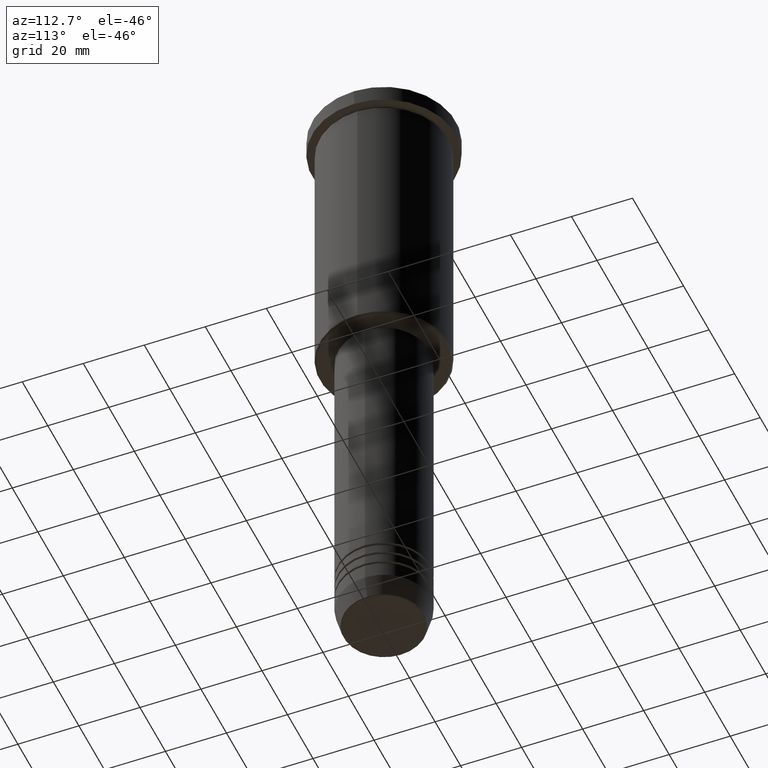
[diagram: clean part render]
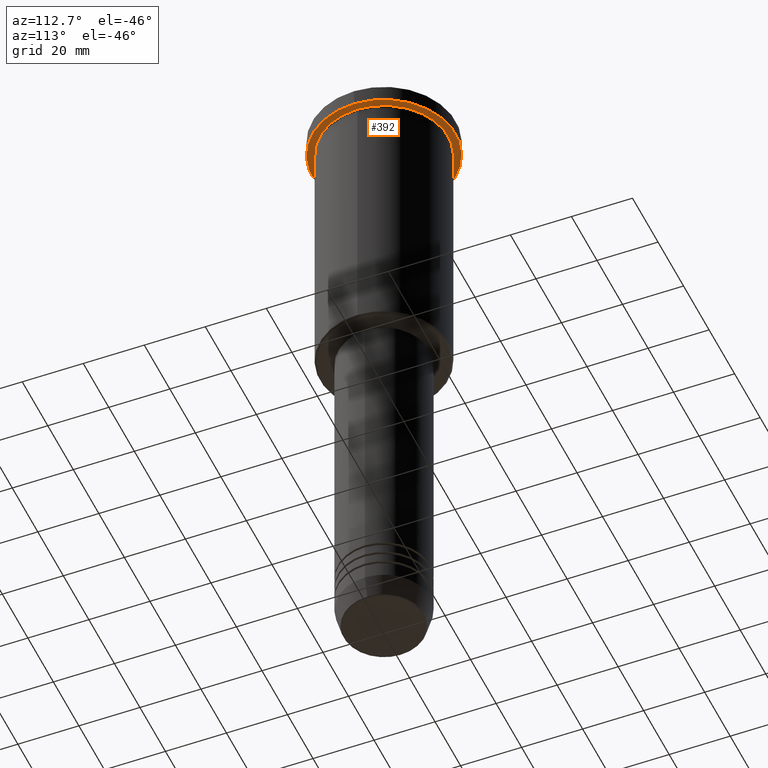
[diagram: same view with one face highlighted and labeled with its STEP entity id]
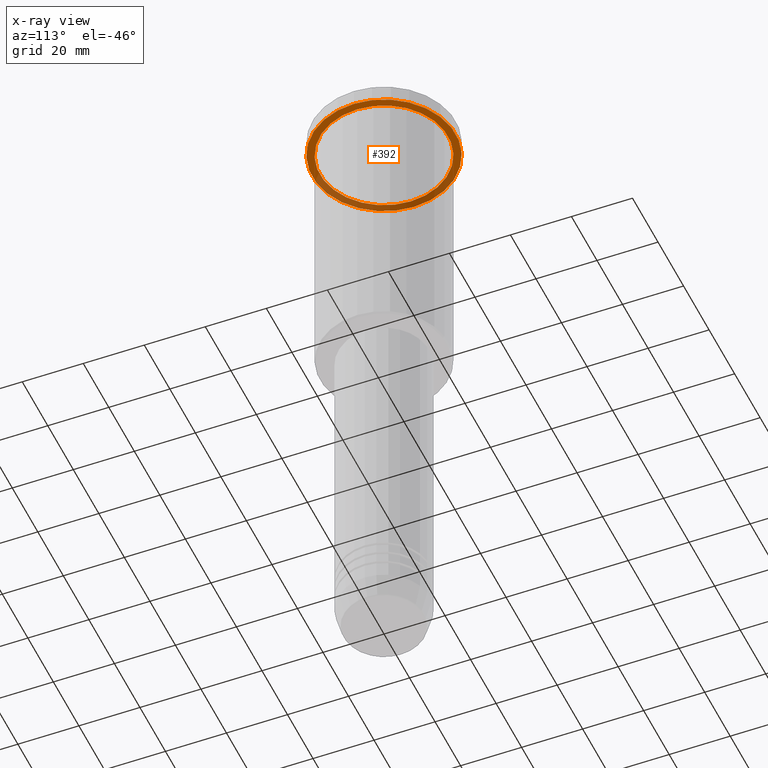
[diagram: x-ray of the same camera — body ghosted, the highlighted face saturated]
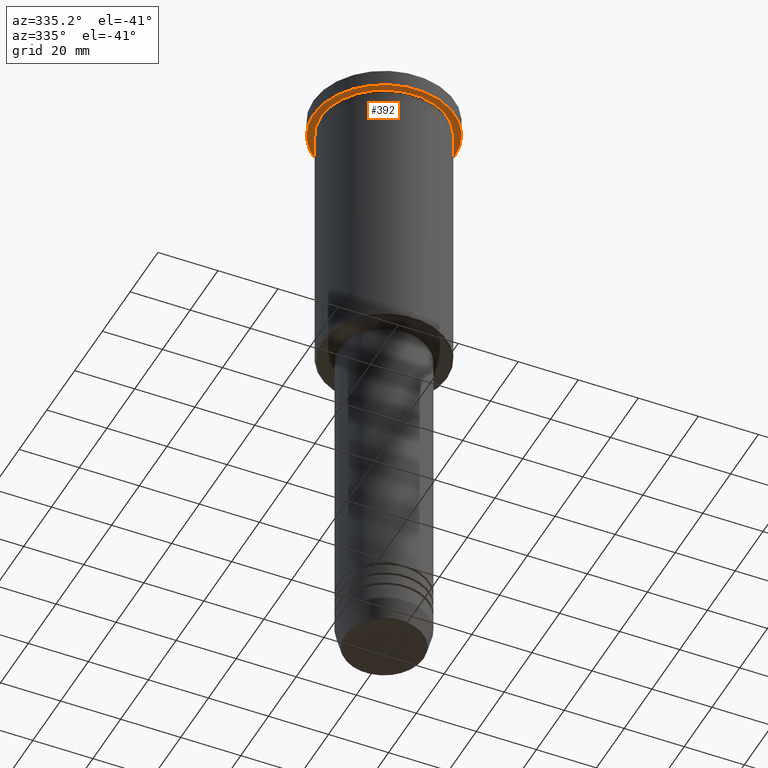
[diagram: same view with one face highlighted and labeled with its STEP entity id]
A machine part, auxiliary view. The second image highlights one B-rep face of the part: STEP entity #392.
The next image is the same camera in x-ray: the body ghosted, the highlighted face saturated — about 37% of this face is hidden behind the body in this view.
A second angle (auxiliary view) of the same face is appended — the face is thin or edge-on in the first view.
In plain terms, the highlighted planar face has unit normal (0, 0, -1).
Its self-contained STEP definition (entity closure, byte-faithful):
#20 = ORIENTED_EDGE ( 'NONE', *, *, #113, .T. ) ;
#87 = PLANE ( 'NONE',  #889 ) ;
#98 = CARTESIAN_POINT ( 'NONE',  ( 0.000000000000000000, 0.000000000000000000, -5.999999999999993783 ) ) ;
#100 = CARTESIAN_POINT ( 'NONE',  ( 21.00000000000000000, 2.571758278209441661E-15, -5.999999999999992895 ) ) ;
#113 = EDGE_CURVE ( 'NONE', #661, #901, #531, .T. ) ;
#124 = DIRECTION ( 'NONE',  ( 1.000000000000000000, 0.000000000000000000, 0.000000000000000000 ) ) ;
#155 = CARTESIAN_POINT ( 'NONE',  ( 0.000000000000000000, 0.000000000000000000, -5.999999999999993783 ) ) ;
#158 = EDGE_CURVE ( 'NONE', #732, #257, #186, .T. ) ;
#161 = FACE_OUTER_BOUND ( 'NONE', #1093, .T. ) ;
#186 = CIRCLE ( 'NONE', #551, 23.50000000000000000 ) ;
#195 = ORIENTED_EDGE ( 'NONE', *, *, #583, .F. ) ;
#207 = CIRCLE ( 'NONE', #963, 23.50000000000000000 ) ;
#216 = DIRECTION ( 'NONE',  ( -1.000000000000000000, 0.000000000000000000, 0.000000000000000000 ) ) ;
#257 = VERTEX_POINT ( 'NONE', #686 ) ;
#279 = EDGE_CURVE ( 'NONE', #901, #661, #702, .T. ) ;
#320 = AXIS2_PLACEMENT_3D ( 'NONE', #1113, #478, #216 ) ;
#363 = ORIENTED_EDGE ( 'NONE', *, *, #279, .T. ) ;
#381 = DIRECTION ( 'NONE',  ( 1.000000000000000000, 0.000000000000000000, 0.000000000000000000 ) ) ;
#392 = ADVANCED_FACE ( 'NONE', ( #622, #161 ), #87, .T. ) ;
#418 = EDGE_LOOP ( 'NONE', ( #20, #363 ) ) ;
#430 = DIRECTION ( 'NONE',  ( 0.000000000000000000, 0.000000000000000000, -1.000000000000000000 ) ) ;
#449 = CARTESIAN_POINT ( 'NONE',  ( 0.000000000000000000, 23.50000000000000000, -5.999999999999993783 ) ) ;
#459 = DIRECTION ( 'NONE',  ( -1.000000000000000000, 0.000000000000000000, -0.000000000000000000 ) ) ;
#478 = DIRECTION ( 'NONE',  ( -0.000000000000000000, -0.000000000000000000, 1.000000000000000000 ) ) ;
#505 = ORIENTED_EDGE ( 'NONE', *, *, #158, .F. ) ;
#516 = CARTESIAN_POINT ( 'NONE',  ( -23.50000000000000000, 2.877919977996280320E-15, -5.999999999999993783 ) ) ;
#531 = CIRCLE ( 'NONE', #320, 21.00000000000000000 ) ;
#551 = AXIS2_PLACEMENT_3D ( 'NONE', #668, #1110, #124 ) ;
#568 = AXIS2_PLACEMENT_3D ( 'NONE', #155, #608, #764 ) ;
#583 = EDGE_CURVE ( 'NONE', #257, #732, #207, .T. ) ;
#608 = DIRECTION ( 'NONE',  ( -0.000000000000000000, -0.000000000000000000, 1.000000000000000000 ) ) ;
#622 = FACE_BOUND ( 'NONE', #418, .T. ) ;
#661 = VERTEX_POINT ( 'NONE', #1059 ) ;
#668 = CARTESIAN_POINT ( 'NONE',  ( 0.000000000000000000, 0.000000000000000000, -5.999999999999993783 ) ) ;
#686 = CARTESIAN_POINT ( 'NONE',  ( 23.50000000000000000, 0.000000000000000000, -5.999999999999993783 ) ) ;
#702 = CIRCLE ( 'NONE', #568, 21.00000000000000000 ) ;
#732 = VERTEX_POINT ( 'NONE', #516 ) ;
#764 = DIRECTION ( 'NONE',  ( -1.000000000000000000, 0.000000000000000000, 0.000000000000000000 ) ) ;
#844 = DIRECTION ( 'NONE',  ( -0.000000000000000000, -0.000000000000000000, 1.000000000000000000 ) ) ;
#889 = AXIS2_PLACEMENT_3D ( 'NONE', #449, #430, #459 ) ;
#901 = VERTEX_POINT ( 'NONE', #100 ) ;
#963 = AXIS2_PLACEMENT_3D ( 'NONE', #98, #844, #381 ) ;
#1059 = CARTESIAN_POINT ( 'NONE',  ( -21.00000000000000000, 0.000000000000000000, -5.999999999999992895 ) ) ;
#1093 = EDGE_LOOP ( 'NONE', ( #195, #505 ) ) ;
#1110 = DIRECTION ( 'NONE',  ( -0.000000000000000000, -0.000000000000000000, 1.000000000000000000 ) ) ;
#1113 = CARTESIAN_POINT ( 'NONE',  ( 0.000000000000000000, 0.000000000000000000, -5.999999999999993783 ) ) ;